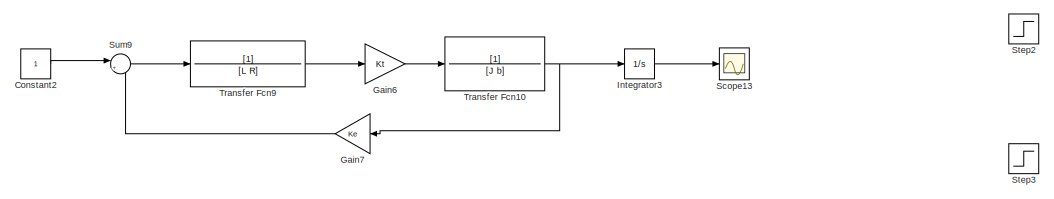
[diagram: root canvas - part 1/3, top center region]
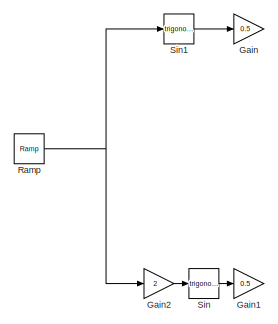
[diagram: root canvas - part 2/3, middle left region]
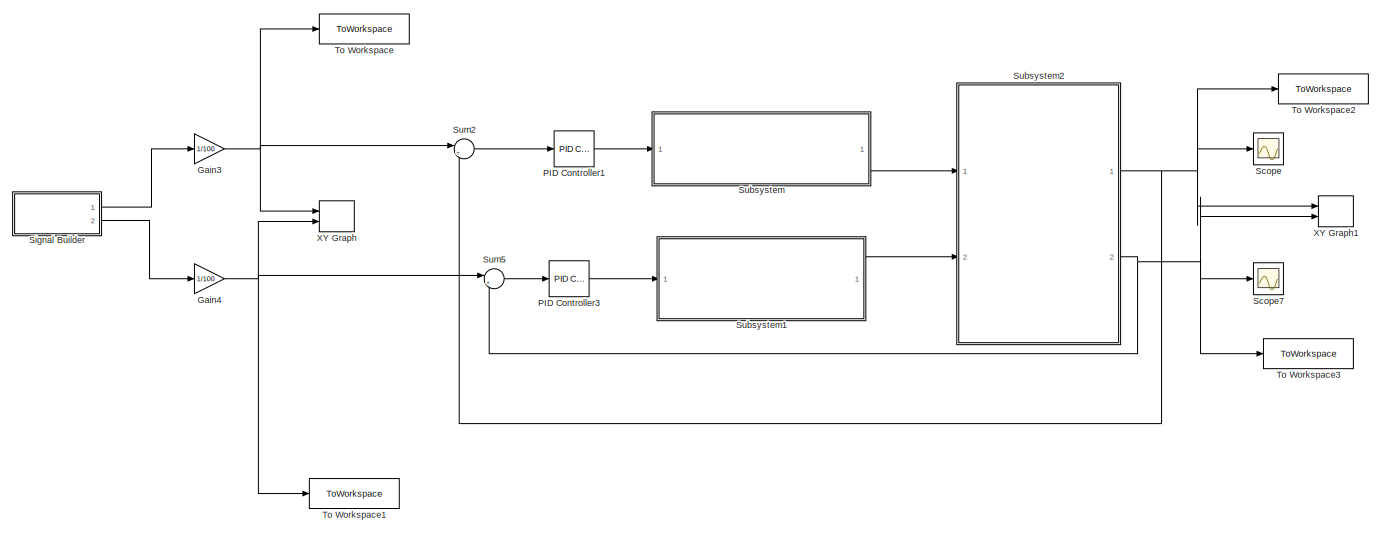
[diagram: root canvas - part 3/3, bottom center region]
MODEL slx_e24d39637925
KIND model
CONFIG AbsTol = auto
CONFIG EnableMultiTasking = off
CONFIG FixedStep = 0.01
CONFIG MaxStep = auto
CONFIG MinStep = auto
CONFIG RelTol = 1e-3
CONFIG SampleTimeConstraint = Unconstrained
CONFIG SolverName = FixedStepAuto
CONFIG StartTime = 0.0
CONFIG StopTime = 20
BLOCK [Constant] Constant2
BLOCK [Gain] Gain
  Gain = 0.5
BLOCK [Gain] Gain1
  Gain = 0.5
BLOCK [Gain] Gain2
  Gain = 2
BLOCK [Gain] Gain3
  Gain = 1/100
BLOCK [Gain] Gain4
  Gain = 1/100
BLOCK [Gain] Gain6
  Gain = Kt
BLOCK [Gain] Gain7
  Gain = Ke
  NameLocation = top
BLOCK [Integrator] Integrator3
  Ports = [1, 1]
BLOCK [Reference] PID Controller1  REF=slpidlib/PID Controller
  Ports = [1, 1]
  SourceBlock = slpidlib/PID Controller
  SourceProductBaseCode = SL
  SourceType = PID 1dof
BLOCK [Reference] PID Controller3  REF=slpidlib/PID Controller
  Ports = [1, 1]
  SourceBlock = slpidlib/PID Controller
  SourceProductBaseCode = SL
  SourceType = PID 1dof
BLOCK [Reference] Ramp  REF=simulink/Sources/Ramp
  Ports = [0, 1]
  SourceBlock = simulink/Sources/Ramp
  SourceProductBaseCode = SL
  SourceType = Ramp
BLOCK [Scope] Scope
  Floating = off
  NumInputPorts = 1
  Ports = [1]
  ScopeSpecificationString = Simulink.scopes.TimeScopeBlockCfg('CurrentConfiguration', extmgr.ConfigurationSet(extmgr.Configuration('Core','General UI',true,'FigureColor',[1 1 1]),extmgr.Configuration('Core','Source UI',true),extmgr.Configuration('Sources','WiredSimulink',true,'DataLoggingVariableName','ScopeData1'),extmgr.Configuration('Visuals','Time Domain',true,'SerializedDisplays',{struct('MinYLimReal','-8.71616','MaxYLi...<+1595ch>
BLOCK [Scope] Scope13
  Floating = off
  NumInputPorts = 1
  Ports = [1]
  ScopeSpecificationString = Simulink.scopes.TimeScopeBlockCfg('CurrentConfiguration', extmgr.ConfigurationSet(extmgr.Configuration('Core','General UI',true),extmgr.Configuration('Core','Source UI',true),extmgr.Configuration('Sources','WiredSimulink',true,'DataLoggingVariableName','ScopeData1'),extmgr.Configuration('Visuals','Time Domain',true,'SerializedDisplays',{struct('MinYLimReal','-0.21817','MaxYLimReal','0.21817','YLab...<+1444ch>
BLOCK [Scope] Scope7
  Floating = off
  NumInputPorts = 1
  Ports = [1]
  ScopeSpecificationString = Simulink.scopes.TimeScopeBlockCfg('CurrentConfiguration', extmgr.ConfigurationSet(extmgr.Configuration('Core','General UI',true),extmgr.Configuration('Core','Source UI',true),extmgr.Configuration('Sources','WiredSimulink',true,'DataLoggingVariableName','ScopeData7'),extmgr.Configuration('Visuals','Time Domain',true,'SerializedDisplays',{struct('MinYLimReal','-7.48478','MaxYLimReal','67.363','YLabe...<+1467ch>
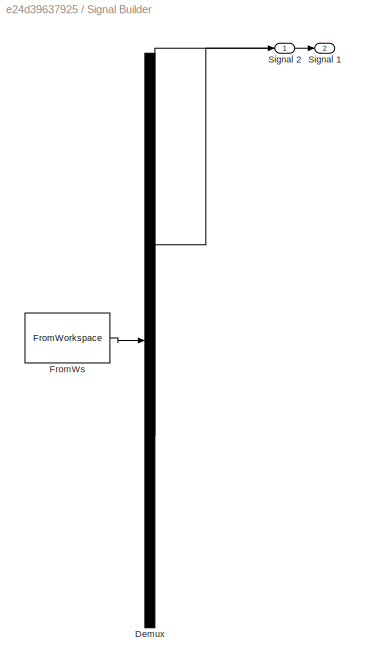
BLOCK [SubSystem] Signal Builder
  ClipboardFcn = sigbuilder_block('clipboard');
  CloseFcn = sigbuilder_block('close');
  ContinueFcn = sigbuilder_block('continue');
  CopyFcn = sigbuilder_block('copy');
  DeleteFcn = sigbuilder_block('delete');
  LoadFcn = sigbuilder_block('load');
  MaskHideContents = on
  ModelCloseFcn = sigbuilder_block('modelClose');
  NameChangeFcn = sigbuilder_block('namechange');
  OpenFcn = sigbuilder_block('open',[0 36 1440 716.25 ]);
  PauseFcn = sigbuilder_block('pause');
  Ports = [0, 2]
  PreSaveFcn = sigbuilder_block('preSave');
  RequestExecContextInheritance = off
  StartFcn = sigbuilder_block('start');
  StopFcn = sigbuilder_block('stop');
  Tag = STV Subsys
BLOCK [Demux] Signal Builder/Demux
  DisplayOption = none
  Outputs = 2
  Ports = [1, 2]
  Tag = STV Demux
BLOCK [FromWorkspace] Signal Builder/FromWs
  Tag = STV FromWs
  VariableName = tuvar
BLOCK [Outport] Signal Builder/Signal 1
  Port = 2
  Tag = STV Outport
BLOCK [Outport] Signal Builder/Signal 2
  Tag = STV Outport
BLOCK [Trigonometry] Sin
  Ports = [1, 1]
BLOCK [Trigonometry] Sin1
  Ports = [1, 1]
BLOCK [Step] Step2
  SampleTime = 0
  Time = 0
BLOCK [Step] Step3
  After = 50
  SampleTime = 0
  Time = 0
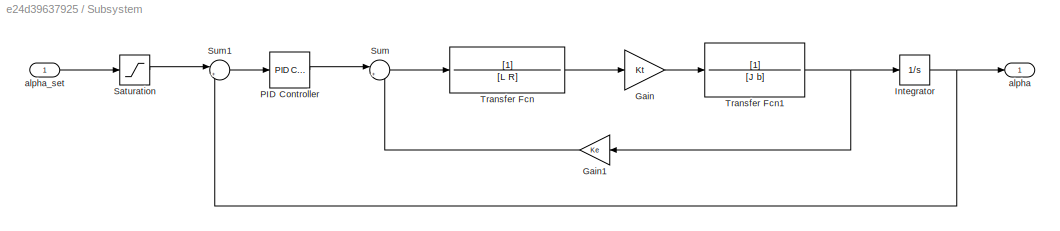
BLOCK [SubSystem] Subsystem
  Ports = [1, 1]
  RequestExecContextInheritance = off
BLOCK [Gain] Subsystem/Gain
  Gain = Kt
BLOCK [Gain] Subsystem/Gain1
  Gain = Ke
  NameLocation = top
BLOCK [Integrator] Subsystem/Integrator
  Ports = [1, 1]
BLOCK [Reference] Subsystem/PID Controller  REF=slpidlib/PID Controller
  Ports = [1, 1]
  SourceBlock = slpidlib/PID Controller
  SourceProductBaseCode = SL
  SourceType = PID 1dof
BLOCK [Saturate] Subsystem/Saturation
  LowerLimit = -10*pi/180
  UpperLimit = 10*pi/180
BLOCK [Sum] Subsystem/Sum
  Inputs = |+-
  Ports = [2, 1]
BLOCK [Sum] Subsystem/Sum1
  Inputs = |+-
  Ports = [2, 1]
BLOCK [TransferFcn] Subsystem/Transfer Fcn
  Denominator = [L R]
BLOCK [TransferFcn] Subsystem/Transfer Fcn1
  Denominator = [J b]
BLOCK [Outport] Subsystem/alpha
BLOCK [Inport] Subsystem/alpha_set
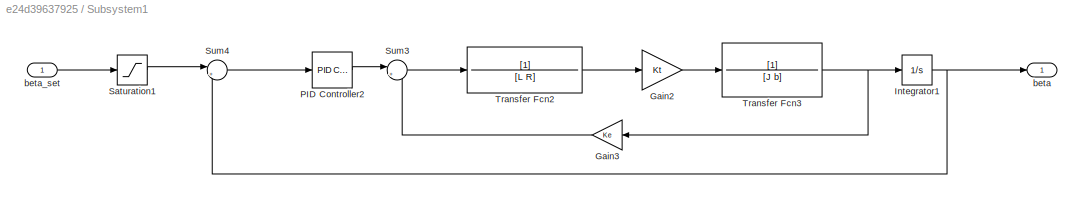
BLOCK [SubSystem] Subsystem1
  Ports = [1, 1]
  RequestExecContextInheritance = off
BLOCK [Gain] Subsystem1/Gain2
  Gain = Kt
BLOCK [Gain] Subsystem1/Gain3
  Gain = Ke
  NameLocation = top
BLOCK [Integrator] Subsystem1/Integrator1
  Ports = [1, 1]
BLOCK [Reference] Subsystem1/PID Controller2  REF=slpidlib/PID Controller
  Ports = [1, 1]
  SourceBlock = slpidlib/PID Controller
  SourceProductBaseCode = SL
  SourceType = PID 1dof
BLOCK [Saturate] Subsystem1/Saturation1
  LowerLimit = -10*pi/180
  UpperLimit = 10*pi/180
BLOCK [Sum] Subsystem1/Sum3
  Inputs = |+-
  Ports = [2, 1]
BLOCK [Sum] Subsystem1/Sum4
  Inputs = |+-
  Ports = [2, 1]
BLOCK [TransferFcn] Subsystem1/Transfer Fcn2
  Denominator = [L R]
BLOCK [TransferFcn] Subsystem1/Transfer Fcn3
  Denominator = [J b]
BLOCK [Outport] Subsystem1/beta
BLOCK [Inport] Subsystem1/beta_set
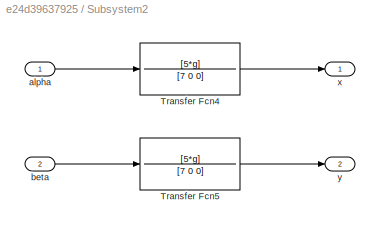
BLOCK [SubSystem] Subsystem2
  Ports = [2, 2]
  RequestExecContextInheritance = off
BLOCK [TransferFcn] Subsystem2/Transfer Fcn4
  Denominator = [7 0 0]
  Numerator = [5*g]
BLOCK [TransferFcn] Subsystem2/Transfer Fcn5
  Denominator = [7 0 0]
  Numerator = [5*g]
BLOCK [Inport] Subsystem2/alpha
BLOCK [Inport] Subsystem2/beta
  Port = 2
BLOCK [Outport] Subsystem2/x
BLOCK [Outport] Subsystem2/y
  Port = 2
BLOCK [Sum] Sum2
  Inputs = |+-
  Ports = [2, 1]
BLOCK [Sum] Sum5
  Inputs = |+-
  Ports = [2, 1]
BLOCK [Sum] Sum9
  Inputs = |+-
  Ports = [2, 1]
BLOCK [ToWorkspace] To Workspace
  FixptAsFi = on
  MaxDataPoints = inf
  Ports = [1]
  SampleTime = -1
  VariableName = x_ref
BLOCK [ToWorkspace] To Workspace1
  FixptAsFi = on
  MaxDataPoints = inf
  Ports = [1]
  SampleTime = -1
  VariableName = y_ref
BLOCK [ToWorkspace] To Workspace2
  FixptAsFi = on
  MaxDataPoints = inf
  Ports = [1]
  SampleTime = -1
  VariableName = x_real
BLOCK [ToWorkspace] To Workspace3
  FixptAsFi = on
  MaxDataPoints = inf
  Ports = [1]
  SampleTime = -1
  VariableName = y_real
BLOCK [TransferFcn] Transfer Fcn10
  Denominator = [J b]
BLOCK [TransferFcn] Transfer Fcn9
  Denominator = [L R]
BLOCK [Record] XY Graph
  CompatibilityTag = XY
  FileSettingsInternal = {"entries":[{"content":{"excelSettings":{"content":{},"type":"Streamout.ExcelSettings"}},"type":"Streamout.FileSettingStorage","uuid":"433a167d-4935-43fe-82bb-285a573382de"}],"packageUris":["http://schema.mathworks.com/mf0/streamout_blocks/R2020a"],"version":"1.0"}
  Layout = [1 1]
  Ports = [2]
  SignalsInternal = {"entries":[{"content":{"signals":[{"content":{"blockPath":["pid_uirs/XY Graph"],"channel":[],"dimensions":[1],"domain":"pid_uirs/XY Graph","lineColor":"#77ac30","plots":[],"port":1,"sid":[],"signalID":423,"signalName":"Gain3"},"type":"RecordBlkView.Signal","uuid":"173140b1-16eb-4966-a211-4f215068f466"},{"content":{"blockPath":["pid_uirs/XY Graph"],"channel":[],"dimensions":[1],"domain":"pid_uirs/...<+351ch>
  VisualizationBindings = {"xyplotplugin":{"info":[{"series":[],"subplotID":1}]}}
BLOCK [Record] XY Graph1
  CompatibilityTag = XY
  FileSettingsInternal = {"entries":[{"content":{"excelSettings":{"content":{},"type":"Streamout.ExcelSettings"}},"type":"Streamout.FileSettingStorage","uuid":"ece6f099-3fd9-4d54-804d-45ad07083327"}],"packageUris":["http://schema.mathworks.com/mf0/streamout_blocks/R2020a"],"version":"1.0"}
  Layout = [1 1]
  Ports = [2]
  SignalsInternal = {"entries":[{"content":{"signals":[{"content":{"blockPath":["pid_uirs/XY Graph1"],"channel":[],"dimensions":[1],"domain":"pid_uirs/XY Graph1","lineColor":"#a2142f","plots":[1],"port":1,"sid":[],"signalID":415,"signalName":"Subsystem2:1"},"type":"RecordBlkView.Signal","uuid":"b358e536-55c0-4cab-b1bd-5e4c0c277426"},{"content":{"blockPath":["pid_uirs/XY Graph1"],"channel":[],"dimensions":[1],"domain"...<+371ch>
  VisualizationBindings = {"xyplotplugin":{"info":[{"series":[],"subplotID":1}]}}
LINE Constant2:1 -> Sum9:1
LINE Gain2:1 -> Sin:1
NET Gain3:1 -> Sum2:1, To Workspace:1, XY Graph:1
NET Gain4:1 -> Sum5:1, To Workspace1:1, XY Graph:2
LINE Gain6:1 -> Transfer Fcn10:1
LINE Gain7:1 -> Sum9:2
LINE Integrator3:1 -> Scope13:1
LINE PID Controller1:1 -> Subsystem:1
LINE PID Controller3:1 -> Subsystem1:1
NET Ramp:1 -> Gain2:1, Sin1:1
LINE Signal Builder:1 -> Gain3:1
LINE Signal Builder:2 -> Gain4:1
LINE Sin1:1 -> Gain:1
LINE Sin:1 -> Gain1:1
LINE Subsystem/Gain1:1 -> Subsystem/Sum:2
LINE Subsystem/Gain:1 -> Subsystem/Transfer Fcn1:1
NET Subsystem/Integrator:1 -> Subsystem/Sum1:2, Subsystem/alpha:1
LINE Subsystem/PID Controller:1 -> Subsystem/Sum:1
LINE Subsystem/Saturation:1 -> Subsystem/Sum1:1
LINE Subsystem/Sum1:1 -> Subsystem/PID Controller:1
LINE Subsystem/Sum:1 -> Subsystem/Transfer Fcn:1
NET Subsystem/Transfer Fcn1:1 -> Subsystem/Gain1:1, Subsystem/Integrator:1
LINE Subsystem/Transfer Fcn:1 -> Subsystem/Gain:1
LINE Subsystem/alpha_set:1 -> Subsystem/Saturation:1
LINE Subsystem1/Gain2:1 -> Subsystem1/Transfer Fcn3:1
LINE Subsystem1/Gain3:1 -> Subsystem1/Sum3:2
NET Subsystem1/Integrator1:1 -> Subsystem1/Sum4:2, Subsystem1/beta:1
LINE Subsystem1/PID Controller2:1 -> Subsystem1/Sum3:1
LINE Subsystem1/Saturation1:1 -> Subsystem1/Sum4:1
LINE Subsystem1/Sum3:1 -> Subsystem1/Transfer Fcn2:1
LINE Subsystem1/Sum4:1 -> Subsystem1/PID Controller2:1
LINE Subsystem1/Transfer Fcn2:1 -> Subsystem1/Gain2:1
NET Subsystem1/Transfer Fcn3:1 -> Subsystem1/Gain3:1, Subsystem1/Integrator1:1
LINE Subsystem1/beta_set:1 -> Subsystem1/Saturation1:1
LINE Subsystem1:1 -> Subsystem2:2
LINE Subsystem2/Transfer Fcn4:1 -> Subsystem2/x:1
LINE Subsystem2/Transfer Fcn5:1 -> Subsystem2/y:1
LINE Subsystem2/alpha:1 -> Subsystem2/Transfer Fcn4:1
LINE Subsystem2/beta:1 -> Subsystem2/Transfer Fcn5:1
NET Subsystem2:1 -> Scope:1, Sum2:2, To Workspace2:1, XY Graph1:1
NET Subsystem2:2 -> Scope7:1, Sum5:2, To Workspace3:1, XY Graph1:2
LINE Subsystem:1 -> Subsystem2:1
LINE Sum2:1 -> PID Controller1:1
LINE Sum5:1 -> PID Controller3:1
LINE Sum9:1 -> Transfer Fcn9:1
NET Transfer Fcn10:1 -> Gain7:1, Integrator3:1
LINE Transfer Fcn9:1 -> Gain6:1
note: NET lines group one-source signal fan-out (src -> all destinations, sorted); 1:1 wires keep LINE
